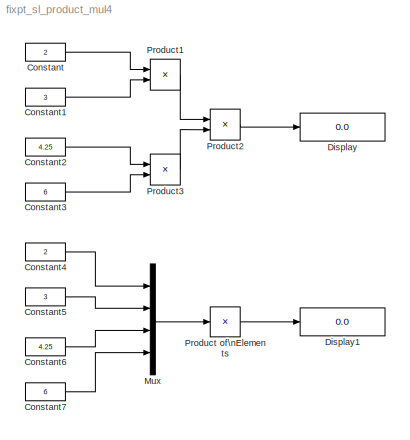
MODEL fixpt_sl_product_mul4
KIND model
BLOCK [Constant] Constant
  AttributesFormatString = DataType = %<OutDataTypeStr>
  OutDataTypeStr = fixdt(1,8,1)
  SID = 1
  SampleTime = -1
  Value = 2
BLOCK [Constant] Constant1
  AttributesFormatString = DataType = %<OutDataTypeStr>
  OutDataTypeStr = fixdt(1,8,1)
  SID = 2
  SampleTime = -1
  Value = 3
BLOCK [Constant] Constant2
  AttributesFormatString = DataType = %<OutDataTypeStr>
  OutDataTypeStr = fixdt(1,8,1)
  SID = 3
  SampleTime = -1
  Value = 4.25
BLOCK [Constant] Constant3
  AttributesFormatString = DataType = %<OutDataTypeStr>
  OutDataTypeStr = fixdt(1,8,1)
  SID = 4
  SampleTime = -1
  Value = 6
BLOCK [Constant] Constant4
  AttributesFormatString = DataType = %<OutDataTypeStr>
  OutDataTypeStr = fixdt(1,8,1)
  SID = 5
  SampleTime = -1
  Value = 2
BLOCK [Constant] Constant5
  AttributesFormatString = DataType = %<OutDataTypeStr>
  OutDataTypeStr = fixdt(1,8,1)
  SID = 6
  SampleTime = -1
  Value = 3
BLOCK [Constant] Constant6
  AttributesFormatString = DataType = %<OutDataTypeStr>
  OutDataTypeStr = fixdt(1,8,1)
  SID = 7
  SampleTime = -1
  Value = 4.25
BLOCK [Constant] Constant7
  AttributesFormatString = DataType = %<OutDataTypeStr>
  OutDataTypeStr = fixdt(1,8,1)
  SID = 8
  SampleTime = -1
  Value = 6
BLOCK [Display] Display
  AttributesFormatString = Format = %<Format>
  Decimation = 1
  Lockdown = off
  Ports = [1]
  SID = 9
BLOCK [Display] Display1
  AttributesFormatString = Format = %<Format>
  Decimation = 1
  Lockdown = off
  Ports = [1]
  SID = 10
BLOCK [Mux] Mux
  DisplayOption = bar
  Ports = [4, 1]
  SID = 11
BLOCK [Product] Product of\nElements
  InputSameDT = off
  Inputs = *
  OutDataTypeStr = Inherit: Inherit via internal rule
  Ports = [1, 1]
  RndMeth = Nearest
  SID = 12
  SaturateOnIntegerOverflow = off
BLOCK [Product] Product1
  InputSameDT = off
  OutDataTypeStr = Inherit: Inherit via internal rule
  Ports = [2, 1]
  RndMeth = Nearest
  SID = 13
  SaturateOnIntegerOverflow = off
BLOCK [Product] Product2
  InputSameDT = off
  OutDataTypeStr = Inherit: Inherit via internal rule
  Ports = [2, 1]
  RndMeth = Nearest
  SID = 14
  SaturateOnIntegerOverflow = off
BLOCK [Product] Product3
  InputSameDT = off
  OutDataTypeStr = Inherit: Inherit via internal rule
  Ports = [2, 1]
  RndMeth = Nearest
  SID = 15
  SaturateOnIntegerOverflow = off
LINE Constant1:1 -> Product1:2
LINE Constant2:1 -> Product3:1
LINE Constant3:1 -> Product3:2
LINE Constant4:1 -> Mux:1
LINE Constant5:1 -> Mux:2
LINE Constant6:1 -> Mux:3
LINE Constant7:1 -> Mux:4
LINE Constant:1 -> Product1:1
LINE Mux:1 -> Product of\nElements:1
LINE Product of\nElements:1 -> Display1:1
LINE Product1:1 -> Product2:1
LINE Product2:1 -> Display:1
LINE Product3:1 -> Product2:2
